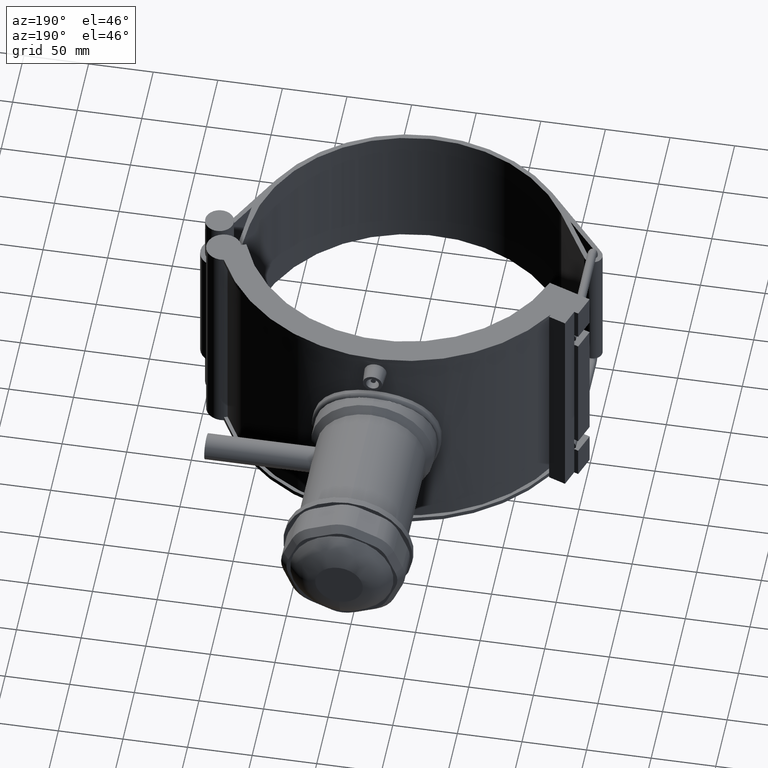
[diagram: clean part render]
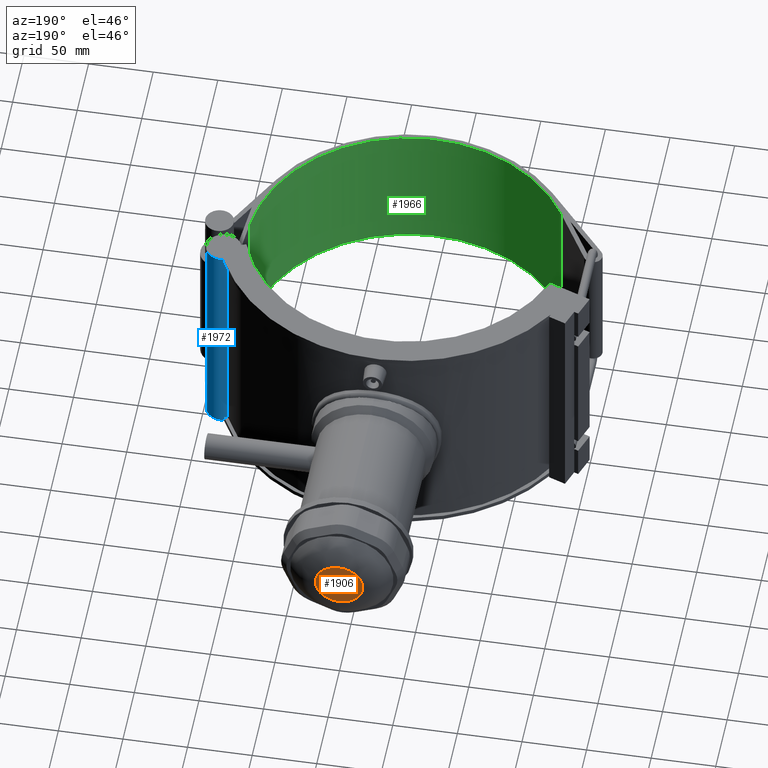
[diagram: same view with three faces highlighted in distinct colors, each labeled with its STEP entity id]
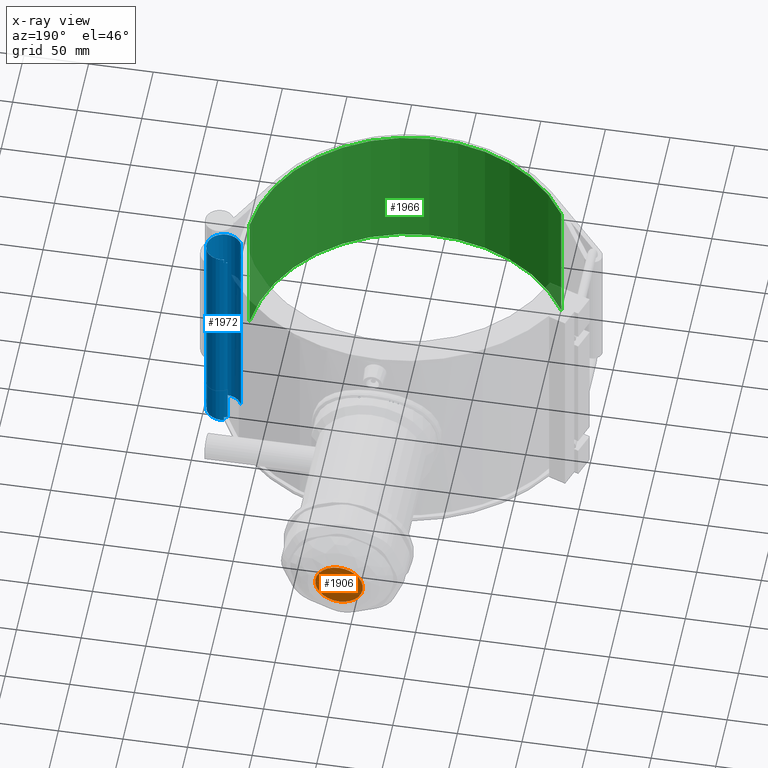
[diagram: x-ray of the same camera — body ghosted, the three highlighted faces saturated]
A machine part, auxiliary view with three faces highlighted in distinct colors.
The next image is the same camera in x-ray (body ghosted, the three faces saturated) — at least one of them is partly hidden behind the body in this view.
Their STEP definitions:

[orange] entity #1906 — the highlighted planar face has unit normal (0, 1, 0).
#485=FACE_OUTER_BOUND('',#614,.T.);
#614=EDGE_LOOP('',(#1397));
#759=CIRCLE('',#2054,18.4132471177344);
#870=VERTEX_POINT('',#3181);
#1072=EDGE_CURVE('',#870,#870,#759,.T.);
#1397=ORIENTED_EDGE('',*,*,#1072,.F.);
#1820=PLANE('',#2055);
#1906=ADVANCED_FACE('',(#485),#1820,.T.);
#2054=AXIS2_PLACEMENT_3D('',#3182,#2371,#2372);
#2055=AXIS2_PLACEMENT_3D('',#3186,#2373,#2374);
#2371=DIRECTION('center_axis',(0.,-1.,-3.06161699786838E-16));
#2372=DIRECTION('ref_axis',(-6.12323399573677E-17,-2.41179193984935E-16,
1.));
#2373=DIRECTION('center_axis',(0.,1.,3.06161699786838E-16));
#2374=DIRECTION('ref_axis',(0.,0.,1.));
#3181=CARTESIAN_POINT('',(3.38245862169641E-15,302.,-18.4132471177344));
#3182=CARTESIAN_POINT('Origin',(0.,302.,5.41906208622704E-14));
#3186=CARTESIAN_POINT('Origin',(0.,302.,5.41906208622704E-14));

[blue] entity #1972 — the highlighted cylindrical surface (edge-blend (fillet) strip) has radius 13.4615 mm, axis along (0, 0, 1).
#188=LINE('',#3535,#349);
#195=LINE('',#3557,#356);
#196=LINE('',#3559,#357);
#197=LINE('',#3563,#358);
#198=LINE('',#3566,#359);
#349=VECTOR('',#2683,105.6);
#356=VECTOR('',#2716,176.);
#357=VECTOR('',#2717,3.52);
#358=VECTOR('',#2720,168.96);
#359=VECTOR('',#2723,3.52);
#384=FACE_BOUND('',#696,.T.);
#442=CYLINDRICAL_SURFACE('',#2170,13.4615384615385);
#551=FACE_OUTER_BOUND('',#695,.T.);
#695=EDGE_LOOP('',(#1731,#1732,#1733,#1734,#1735,#1736,#1737,#1738));
#696=EDGE_LOOP('',(#1739,#1740));
#794=CIRCLE('',#2146,13.4615384615385);
#797=CIRCLE('',#2150,13.4615384615385);
#801=CIRCLE('',#2171,13.4615384615385);
#802=CIRCLE('',#2172,13.4615384615385);
#889=VERTEX_POINT('',#3276);
#909=VERTEX_POINT('',#3318);
#971=VERTEX_POINT('',#3510);
#972=VERTEX_POINT('',#3512);
#973=VERTEX_POINT('',#3516);
#974=VERTEX_POINT('',#3518);
#978=VERTEX_POINT('',#3558);
#979=VERTEX_POINT('',#3560);
#980=VERTEX_POINT('',#3562);
#981=VERTEX_POINT('',#3564);
#1218=EDGE_CURVE('',#971,#972,#794,.T.);
#1221=EDGE_CURVE('',#973,#974,#797,.T.);
#1230=EDGE_CURVE('',#889,#909,#188,.T.);
#1239=EDGE_CURVE('',#974,#971,#195,.T.);
#1240=EDGE_CURVE('',#978,#973,#196,.T.);
#1241=EDGE_CURVE('',#979,#978,#801,.T.);
#1242=EDGE_CURVE('',#980,#979,#197,.T.);
#1243=EDGE_CURVE('',#981,#980,#802,.T.);
#1244=EDGE_CURVE('',#972,#981,#198,.T.);
#1731=ORIENTED_EDGE('',*,*,#1239,.F.);
#1732=ORIENTED_EDGE('',*,*,#1221,.F.);
#1733=ORIENTED_EDGE('',*,*,#1240,.F.);
#1734=ORIENTED_EDGE('',*,*,#1241,.F.);
#1735=ORIENTED_EDGE('',*,*,#1242,.F.);
#1736=ORIENTED_EDGE('',*,*,#1243,.F.);
#1737=ORIENTED_EDGE('',*,*,#1244,.F.);
#1738=ORIENTED_EDGE('',*,*,#1218,.F.);
#1739=ORIENTED_EDGE('',*,*,#1230,.T.);
#1740=ORIENTED_EDGE('',*,*,#1230,.F.);
#1972=ADVANCED_FACE('',(#551,#384),#442,.T.);
#2146=AXIS2_PLACEMENT_3D('',#3513,#2652,#2653);
#2150=AXIS2_PLACEMENT_3D('',#3519,#2660,#2661);
#2170=AXIS2_PLACEMENT_3D('',#3556,#2714,#2715);
#2171=AXIS2_PLACEMENT_3D('',#3561,#2718,#2719);
#2172=AXIS2_PLACEMENT_3D('',#3565,#2721,#2722);
#2652=DIRECTION('center_axis',(0.,0.,1.));
#2653=DIRECTION('ref_axis',(-1.,0.,0.));
#2660=DIRECTION('center_axis',(0.,0.,-1.));
#2661=DIRECTION('ref_axis',(-1.,0.,0.));
#2683=DIRECTION('',(0.,0.,1.));
#2714=DIRECTION('center_axis',(0.,0.,1.));
#2715=DIRECTION('ref_axis',(-1.,0.,0.));
#2716=DIRECTION('',(0.,0.,1.));
#2717=DIRECTION('',(0.,0.,-1.));
#2718=DIRECTION('center_axis',(0.,0.,-1.));
#2719=DIRECTION('ref_axis',(-1.,0.,0.));
#2720=DIRECTION('',(0.,0.,-1.));
#2721=DIRECTION('center_axis',(0.,0.,1.));
#2722=DIRECTION('ref_axis',(-1.,0.,0.));
#2723=DIRECTION('',(0.,0.,-1.));
#3276=CARTESIAN_POINT('',(137.721878529248,35.8284318855429,-52.8));
#3318=CARTESIAN_POINT('',(137.721878529248,35.8284318855429,52.8));
#3510=CARTESIAN_POINT('',(121.256490105259,44.1337531099084,88.));
#3512=CARTESIAN_POINT('',(131.473839720461,61.9778344987827,88.));
#3513=CARTESIAN_POINT('Origin',(133.906198461992,48.7378704239078,88.));
#3516=CARTESIAN_POINT('',(131.473839720461,61.9778344987827,-88.));
#3518=CARTESIAN_POINT('',(121.256490105259,44.1337531099084,-88.));
#3519=CARTESIAN_POINT('Origin',(133.906198461992,48.7378704239078,-88.));
#3535=CARTESIAN_POINT('',(137.721878529248,35.8284318855429,0.));
#3556=CARTESIAN_POINT('Origin',(133.906198461992,48.7378704239078,0.));
#3557=CARTESIAN_POINT('',(121.256490105259,44.1337531099084,0.));
#3558=CARTESIAN_POINT('',(131.473839720461,61.9778344987827,-84.48));
#3559=CARTESIAN_POINT('',(131.473839720461,61.9778344987827,0.));
#3560=CARTESIAN_POINT('',(128.709730311317,61.1559917194382,-84.48));
#3561=CARTESIAN_POINT('Origin',(133.906198461992,48.7378704239078,-84.48));
#3562=CARTESIAN_POINT('',(128.709730311317,61.1559917194382,84.48));
#3563=CARTESIAN_POINT('',(128.709730311317,61.1559917194381,0.));
#3564=CARTESIAN_POINT('',(131.473839720461,61.9778344987827,84.48));
#3565=CARTESIAN_POINT('Origin',(133.906198461992,48.7378704239078,84.48));
#3566=CARTESIAN_POINT('',(131.473839720461,61.9778344987827,0.));

[green] entity #1966 — the highlighted cylindrical surface (partial cylindrical patch) has radius 125 mm, axis along (0, 0, 1).
#187=LINE('',#3533,#348);
#194=LINE('',#3545,#355);
#348=VECTOR('',#2680,105.6);
#355=VECTOR('',#2697,105.6);
#438=CYLINDRICAL_SURFACE('',#2162,125.);
#545=FACE_OUTER_BOUND('',#687,.T.);
#687=EDGE_LOOP('',(#1711,#1712,#1713,#1714));
#771=CIRCLE('',#2084,125.);
#775=CIRCLE('',#2089,125.);
#895=VERTEX_POINT('',#3288);
#896=VERTEX_POINT('',#3290);
#902=VERTEX_POINT('',#3304);
#903=VERTEX_POINT('',#3306);
#1109=EDGE_CURVE('',#895,#896,#771,.T.);
#1117=EDGE_CURVE('',#902,#903,#775,.T.);
#1229=EDGE_CURVE('',#896,#902,#187,.T.);
#1236=EDGE_CURVE('',#895,#903,#194,.T.);
#1711=ORIENTED_EDGE('',*,*,#1236,.T.);
#1712=ORIENTED_EDGE('',*,*,#1117,.F.);
#1713=ORIENTED_EDGE('',*,*,#1229,.F.);
#1714=ORIENTED_EDGE('',*,*,#1109,.F.);
#1966=ADVANCED_FACE('',(#545),#438,.F.);
#2084=AXIS2_PLACEMENT_3D('',#3291,#2452,#2453);
#2089=AXIS2_PLACEMENT_3D('',#3307,#2466,#2467);
#2162=AXIS2_PLACEMENT_3D('',#3546,#2698,#2699);
#2452=DIRECTION('center_axis',(0.,0.,1.));
#2453=DIRECTION('ref_axis',(0.859295298342616,0.511479804338621,0.));
#2466=DIRECTION('center_axis',(0.,0.,-1.));
#2467=DIRECTION('ref_axis',(0.859295298342616,0.511479804338621,0.));
#2680=DIRECTION('',(0.,0.,1.));
#2697=DIRECTION('',(0.,0.,1.));
#2698=DIRECTION('center_axis',(0.,0.,1.));
#2699=DIRECTION('ref_axis',(0.859295298342616,0.511479804338621,0.));
#3288=CARTESIAN_POINT('',(-107.411912292827,-63.9349755423277,-52.8));
#3290=CARTESIAN_POINT('',(124.486064201098,-11.3234190825937,-52.8));
#3291=CARTESIAN_POINT('Origin',(0.,0.,-52.8));
#3304=CARTESIAN_POINT('',(124.486064201098,-11.3234190825937,52.8));
#3306=CARTESIAN_POINT('',(-107.411912292827,-63.9349755423277,52.8));
#3307=CARTESIAN_POINT('Origin',(0.,0.,52.8));
#3533=CARTESIAN_POINT('',(124.486064201098,-11.3234190825937,0.));
#3545=CARTESIAN_POINT('',(-107.411912292827,-63.9349755423277,0.));
#3546=CARTESIAN_POINT('Origin',(0.,0.,0.));